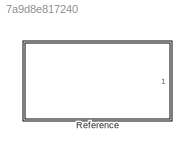
MODEL slx_7a9d8e817240
KIND library
CONFIG AbsTol = auto
CONFIG EnableMultiTasking = off
CONFIG FixedStep = auto
CONFIG MaxStep = auto
CONFIG MinStep = auto
CONFIG RelTol = 1e-3
CONFIG SampleTimeConstraint = Unconstrained
CONFIG SolverName = VariableStepAuto
CONFIG StartTime = 0.0
CONFIG StopTime = 10.0
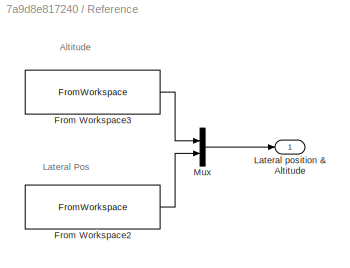
BLOCK [SubSystem] Reference
  Ports = [0, 1]
  RequestExecContextInheritance = off
BLOCK [FromWorkspace] Reference/From Workspace2
  SampleTime = .1
  VariableName = [t', posRef(:,2)]
BLOCK [FromWorkspace] Reference/From Workspace3
  SampleTime = .1
  VariableName = [t', posRef(:,1)]
BLOCK [Outport] Reference/Lateral position & Altitude
  VectorParamsAs1DForOutWhenUnconnected = off
BLOCK [Mux] Reference/Mux
  DisplayOption = bar
  Inputs = 2
  Ports = [2, 1]
ANNOTATION Reference: Altitude
ANNOTATION Reference: Lateral Pos
LINE Reference/From Workspace2:1 -> Reference/Mux:2
LINE Reference/From Workspace3:1 -> Reference/Mux:1
LINE Reference/Mux:1 -> Reference/Lateral position & Altitude:1
